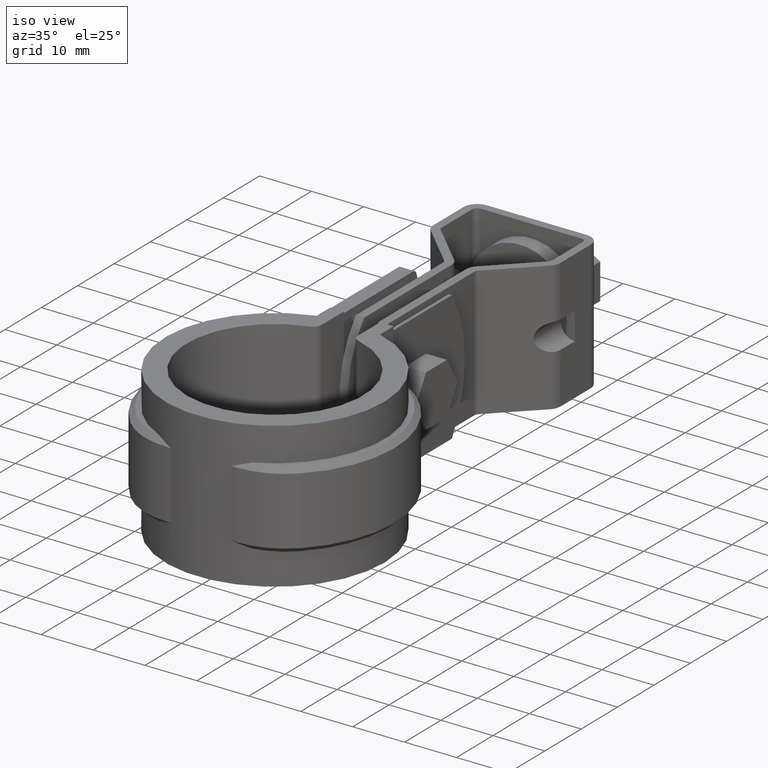
[diagram: clean part render]
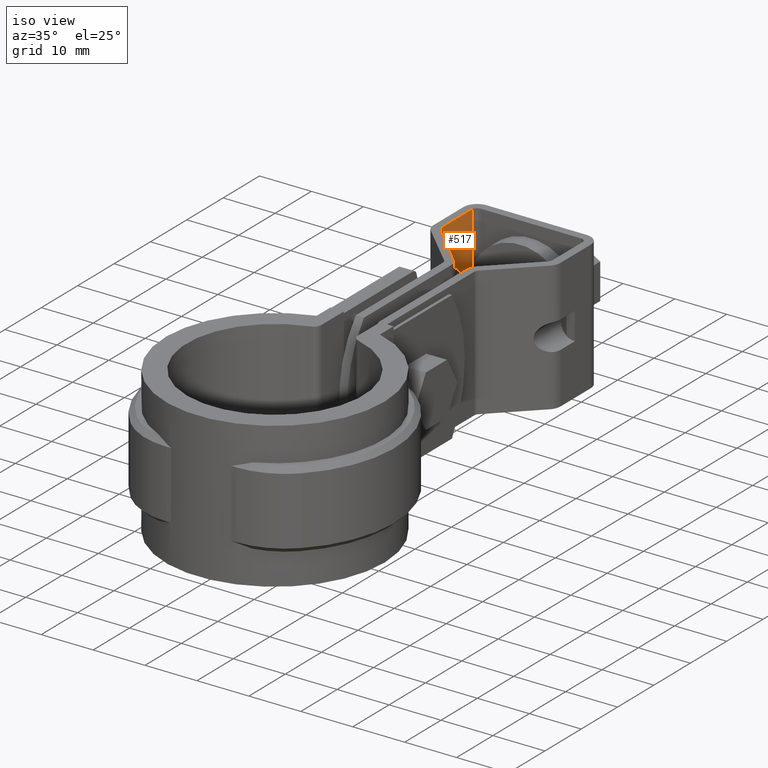
[diagram: same view with one face highlighted and labeled with its STEP entity id]
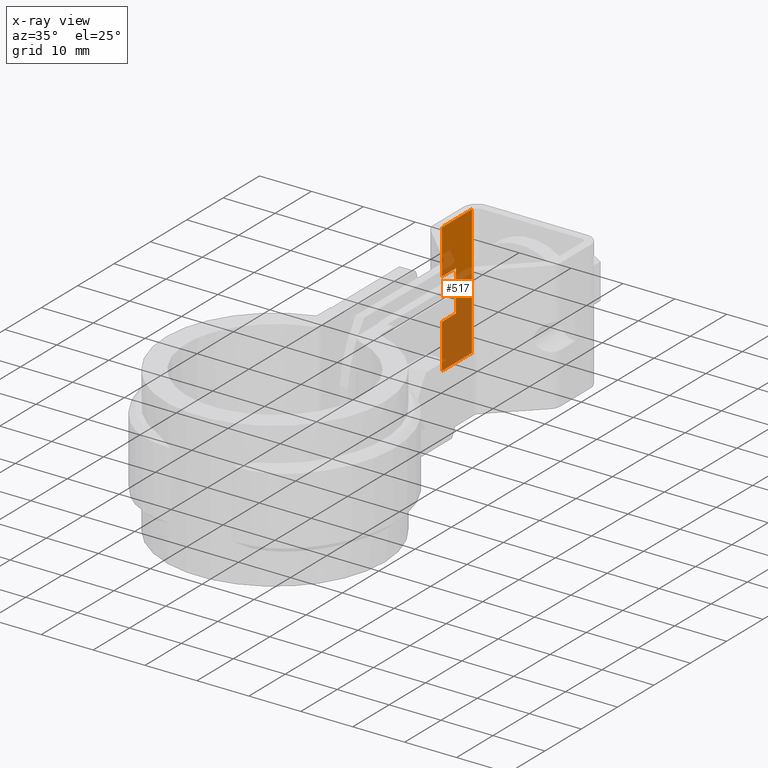
[diagram: x-ray of the same camera — body ghosted, the highlighted face saturated]
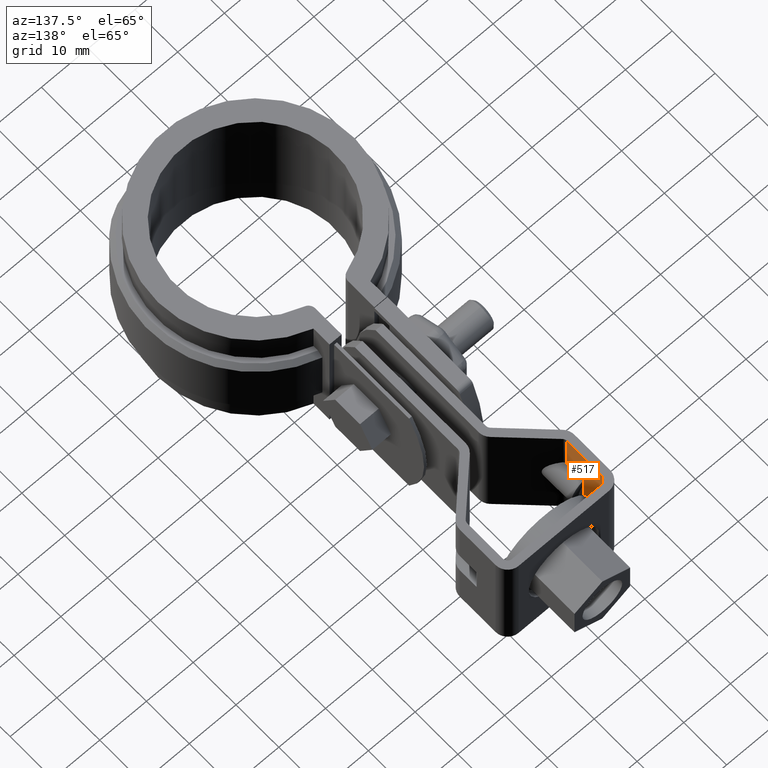
[diagram: same view with one face highlighted and labeled with its STEP entity id]
A machine part, iso view. The second image highlights one B-rep face of the part: STEP entity #517.
The next image is the same camera in x-ray: the body ghosted, the highlighted face saturated — about 63% of this face is hidden behind the body in this view.
A second angle (auxiliary view) of the same face is appended — the face is thin or edge-on in the first view.
In plain terms, the highlighted planar face has unit normal (1, -0, -0).
Its self-contained STEP definition (entity closure, byte-faithful):
#517 = ADVANCED_FACE( '', ( #1017 ), #1018, .T. );
#1017 = FACE_OUTER_BOUND( '', #2110, .T. );
#1018 = PLANE( '', #2111 );
#2110 = EDGE_LOOP( '', ( #4912, #4913, #4914, #4915, #4916, #4917, #4918, #4919, #4920, #4921 ) );
#2111 = AXIS2_PLACEMENT_3D( '', #4922, #4923, #4924 );
#4912 = ORIENTED_EDGE( '', *, *, #6837, .F. );
#4913 = ORIENTED_EDGE( '', *, *, #6841, .T. );
#4914 = ORIENTED_EDGE( '', *, *, #6832, .F. );
#4915 = ORIENTED_EDGE( '', *, *, #6813, .F. );
#4916 = ORIENTED_EDGE( '', *, *, #6718, .T. );
#4917 = ORIENTED_EDGE( '', *, *, #6840, .T. );
#4918 = ORIENTED_EDGE( '', *, *, #6838, .F. );
#4919 = ORIENTED_EDGE( '', *, *, #6790, .F. );
#4920 = ORIENTED_EDGE( '', *, *, #6842, .F. );
#4921 = ORIENTED_EDGE( '', *, *, #6789, .F. );
#4922 = CARTESIAN_POINT( '', ( -10.6499990839383, 69.4043598643950, 2.30346490492916E-006 ) );
#4923 = DIRECTION( '', ( 1.00000000000000, -6.88261999302233E-009, -4.22881814054225E-010 ) );
#4924 = DIRECTION( '', ( 0.000000000000000, 0.0613263340433964, -0.998117768979592 ) );
#6718 = EDGE_CURVE( '', #7882, #7880, #7883, .F. );
#6789 = EDGE_CURVE( '', #8009, #7952, #8011, .T. );
#6790 = EDGE_CURVE( '', #7950, #8008, #8012, .T. );
#6813 = EDGE_CURVE( '', #7882, #8047, #8050, .T. );
#6832 = EDGE_CURVE( '', #8047, #8076, #8077, .T. );
#6837 = EDGE_CURVE( '', #8082, #8009, #8084, .T. );
#6838 = EDGE_CURVE( '', #8008, #8085, #8086, .F. );
#6840 = EDGE_CURVE( '', #7880, #8085, #8088, .T. );
#6841 = EDGE_CURVE( '', #8082, #8076, #8089, .T. );
#6842 = EDGE_CURVE( '', #7952, #7950, #8090, .F. );
#7880 = VERTEX_POINT( '', #11078 );
#7882 = VERTEX_POINT( '', #11080 );
#7883 = LINE( '', #11081, #11082 );
#7950 = VERTEX_POINT( '', #11186 );
#7952 = VERTEX_POINT( '', #11188 );
#8008 = VERTEX_POINT( '', #11273 );
#8009 = VERTEX_POINT( '', #11274 );
#8011 = LINE( '', #11276, #11277 );
#8012 = LINE( '', #11278, #11279 );
#8047 = VERTEX_POINT( '', #11342 );
#8050 = LINE( '', #11346, #11347 );
#8076 = VERTEX_POINT( '', #11383 );
#8077 = LINE( '', #11384, #11385 );
#8082 = VERTEX_POINT( '', #11391 );
#8084 = LINE( '', #11398, #11399 );
#8085 = VERTEX_POINT( '', #11400 );
#8086 = LINE( '', #11401, #11402 );
#8088 = LINE( '', #11409, #11410 );
#8089 = LINE( '', #11411, #11412 );
#8090 = LINE( '', #11413, #11414 );
#11078 = CARTESIAN_POINT( '', ( -10.6499991410930, 61.1001656332851, 2.16520051748267E-006 ) );
#11080 = CARTESIAN_POINT( '', ( -10.6499990839383, 69.4043598643950, 2.30346490279313E-006 ) );
#11081 = CARTESIAN_POINT( '', ( -10.6499990839383, 69.4043598643950, 2.30346490279313E-006 ) );
#11082 = VECTOR( '', #12955, 1000.00000000000 );
#11186 = CARTESIAN_POINT( '', ( -10.6499991186145, 65.0043600373468, -10.3875347523671 ) );
#11188 = CARTESIAN_POINT( '', ( -10.6499991204012, 65.0043601076916, -14.6124607872226 ) );
#11273 = CARTESIAN_POINT( '', ( -10.6499991178428, 65.0043600069629, -8.56267634527287 ) );
#11274 = CARTESIAN_POINT( '', ( -10.6499991211729, 65.0043601380753, -16.4373191943168 ) );
#11276 = CARTESIAN_POINT( '', ( -10.6499991195078, 65.0043600725191, -12.4999977697948 ) );
#11277 = VECTOR( '', #13074, 1000.00000000000 );
#11278 = CARTESIAN_POINT( '', ( -10.6499991195078, 65.0043600725191, -12.4999977697948 ) );
#11279 = VECTOR( '', #13075, 1000.00000000000 );
#11342 = CARTESIAN_POINT( '', ( -10.6499990945103, 69.4043602806437, -24.9999976965351 ) );
#11346 = CARTESIAN_POINT( '', ( -10.6499990839383, 69.4043598643950, 2.30346490492916E-006 ) );
#11347 = VECTOR( '', #13110, 1000.00000000000 );
#11383 = CARTESIAN_POINT( '', ( -10.6499991516650, 61.1001660495338, -24.9999978347995 ) );
#11384 = CARTESIAN_POINT( '', ( -10.6499990945103, 69.4043602806437, -24.9999976965351 ) );
#11385 = VECTOR( '', #13145, 1000.00000000000 );
#11391 = CARTESIAN_POINT( '', ( -10.6499991480440, 61.1001659069656, -16.4373192593215 ) );
#11398 = CARTESIAN_POINT( '', ( -10.6499991899991, 55.0043601380753, -16.4373193608163 ) );
#11399 = VECTOR( '', #13153, 1000.00000000000 );
#11400 = CARTESIAN_POINT( '', ( -10.6499991447140, 61.1001657758532, -8.56267641027747 ) );
#11401 = CARTESIAN_POINT( '', ( -10.6499991866690, 55.0043600069629, -8.56267651177233 ) );
#11402 = VECTOR( '', #13154, 1000.00000000000 );
#11409 = CARTESIAN_POINT( '', ( -10.6499991410930, 61.1001656332851, 2.16520051887770E-006 ) );
#11410 = VECTOR( '', #13155, 1000.00000000000 );
#11411 = CARTESIAN_POINT( '', ( -10.6499991410930, 61.1001656332851, 2.16520051887770E-006 ) );
#11412 = VECTOR( '', #13156, 1000.00000000000 );
#11413 = CARTESIAN_POINT( '', ( -10.6499991195078, 65.0043600725193, -12.4999977697948 ) );
#11414 = VECTOR( '', #13157, 1000.00000000000 );
#12955 = DIRECTION( '', ( 6.88262000006329E-009, 1.00000000000000, 1.66499459745878E-008 ) );
#13074 = DIRECTION( '', ( 4.22881699458974E-010, -1.66499459774983E-008, 1.00000000000000 ) );
#13075 = DIRECTION( '', ( 4.22881699458974E-010, -1.66499459774983E-008, 1.00000000000000 ) );
#13110 = DIRECTION( '', ( -4.22881699458974E-010, 1.66499459774983E-008, -1.00000000000000 ) );
#13145 = DIRECTION( '', ( -6.88262000006329E-009, -1.00000000000000, -1.66499459745878E-008 ) );
#13153 = DIRECTION( '', ( 6.88262000006329E-009, 1.00000000000000, 1.66499459745878E-008 ) );
#13154 = DIRECTION( '', ( 6.88262000006329E-009, 1.00000000000000, 1.66499459745878E-008 ) );
#13155 = DIRECTION( '', ( -4.22881699458974E-010, 1.66499459774983E-008, -1.00000000000000 ) );
#13156 = DIRECTION( '', ( -4.22881699458974E-010, 1.66499459774983E-008, -1.00000000000000 ) );
#13157 = DIRECTION( '', ( -4.22881699458974E-010, 1.66499459774983E-008, -1.00000000000000 ) );